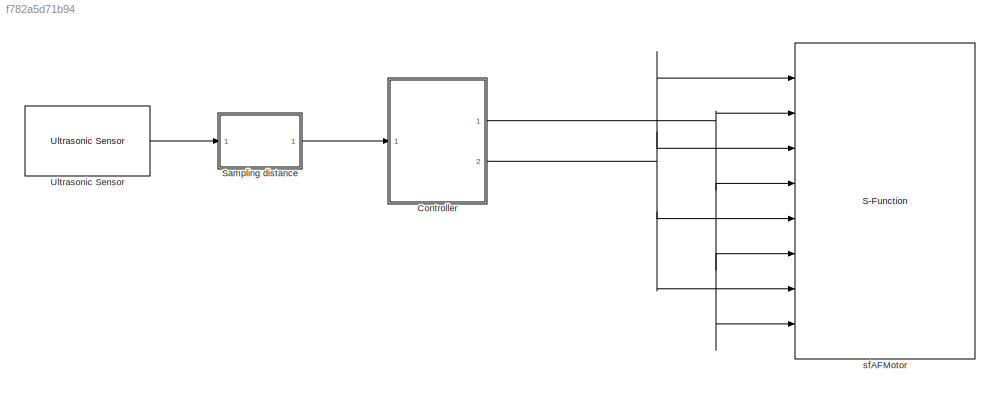
MODEL slx_f782a5d71b94
KIND model
CONFIG AbsTol = auto
CONFIG EnableMultiTasking = on
CONFIG FixedStep = 1e-3
CONFIG MaxStep = auto
CONFIG MinStep = auto
CONFIG RelTol = 1e-3
CONFIG SampleTimeConstraint = Unconstrained
CONFIG Solver = FixedStepAuto
CONFIG SolverName = FixedStepAuto
CONFIG StartTime = 0.0
CONFIG StopTime = inf
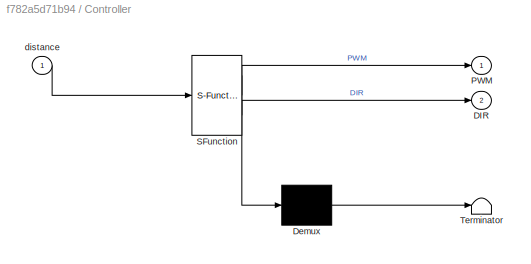
BLOCK [SubSystem] Controller
  BlockKeywords = __PRM__SERIALIZED__DATA__:Stateflow Chart,Stateflow Diagram
  ErrorFcn = Stateflow.Translate.translate
  PermitHierarchicalResolution = ExplicitOnly
  Ports = [1, 2]
  RequestExecContextInheritance = off
  SFBlockType = Chart
  TreatAsAtomicUnit = on
BLOCK [Demux] Controller/ Demux 
  Outputs = 1
  Ports = [1, 1]
BLOCK [S-Function] Controller/ SFunction 
  EnableBusSupport = on
  FunctionName = sf_sfun
  PortCounts = [1 3]
  Ports = [1, 3]
  SFcnIsStateOwnerBlock = off
  SFunctionDeploymentMode = off
  Tag = Stateflow S-Function SAD_project 3
BLOCK [Terminator] Controller/ Terminator 
BLOCK [Outport] Controller/DIR
  IconDisplay = Port number
  Port = 2
BLOCK [Outport] Controller/PWM
  IconDisplay = Port number
BLOCK [Inport] Controller/distance
  IconDisplay = Port number
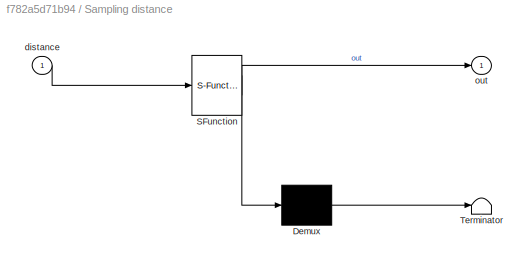
BLOCK [SubSystem] Sampling distance
  BlockKeywords = __PRM__SERIALIZED__DATA__:Stateflow Chart,Stateflow Diagram
  ErrorFcn = Stateflow.Translate.translate
  PermitHierarchicalResolution = ExplicitOnly
  Ports = [1, 1]
  RequestExecContextInheritance = off
  SFBlockType = Chart
  TreatAsAtomicUnit = on
BLOCK [Demux] Sampling distance/ Demux 
  Outputs = 1
  Ports = [1, 1]
BLOCK [S-Function] Sampling distance/ SFunction 
  EnableBusSupport = on
  FunctionName = sf_sfun
  PortCounts = [1 2]
  Ports = [1, 2]
  SFcnIsStateOwnerBlock = off
  SFunctionDeploymentMode = off
  Tag = Stateflow S-Function SAD_project 1
BLOCK [Terminator] Sampling distance/ Terminator 
BLOCK [Inport] Sampling distance/distance
  IconDisplay = Port number
BLOCK [Outport] Sampling distance/out
  IconDisplay = Port number
BLOCK [Reference] Ultrasonic Sensor  REF=arduinosensorlib/Ultrasonic Sensor
  Ports = [0, 1]
  SourceBlock = arduinosensorlib/Ultrasonic Sensor
  SourceProductBaseCode = ARDUINO
  SourceProductName = Simulink Support Package for Arduino Hardware
  SourceType = Arduino Ultrasonic Sensor
BLOCK [S-Function] sfAFMotor
  CopyFcn = set_param(gcbh,'LinkStatus','none')
  EnableBusSupport = off
  FunctionName = sfAFMotor
  InitFcn = try, set_param(gcb,'FunctionName','sfAFMotor'), end
  OpenFcn = sfunctionwizard(gcbh)
  Ports = [8]
  PreSaveFcn = try, set_param(gcb,'FunctionName','sfAFMotor'), end
  SFcnIsStateOwnerBlock = off
  SFunctionDeploymentMode = off
  SFunctionModules = sfAFMotor_wrapper
NET Controller:1 -> sfAFMotor:2, sfAFMotor:4, sfAFMotor:6, sfAFMotor:8
NET Controller:2 -> sfAFMotor:1, sfAFMotor:3, sfAFMotor:5, sfAFMotor:7
LINE Sampling distance:1 -> Controller:1
LINE Ultrasonic Sensor:1 -> Sampling distance:1
note: NET lines group one-source signal fan-out (src -> all destinations, sorted); 1:1 wires keep LINE
CHART Sampling distance states=2 transitions=3
  STATE_LABEL 'value\nentry:\nv1=distance;'
  STATE_LABEL 'value2\nentry:\nout=v1;'
CHART Controller states=4 transitions=12
  STATE_LABEL 'Backward\nentry:\nDIR=2;'
  STATE_LABEL 'stop\nentry:\nPWM=0;\nDIR=3;'
  STATE_LABEL 'Forward\nentry:\nDIR=1;\n'
  STATE_LABEL 'Add\nentry:\nPWM=(PWM+1);\nq=0;\nif(p==1 && distance<0.2)\n    q=1;\nend\nif(p==2 && distance>=0.2)\n    q=1;\nend'
